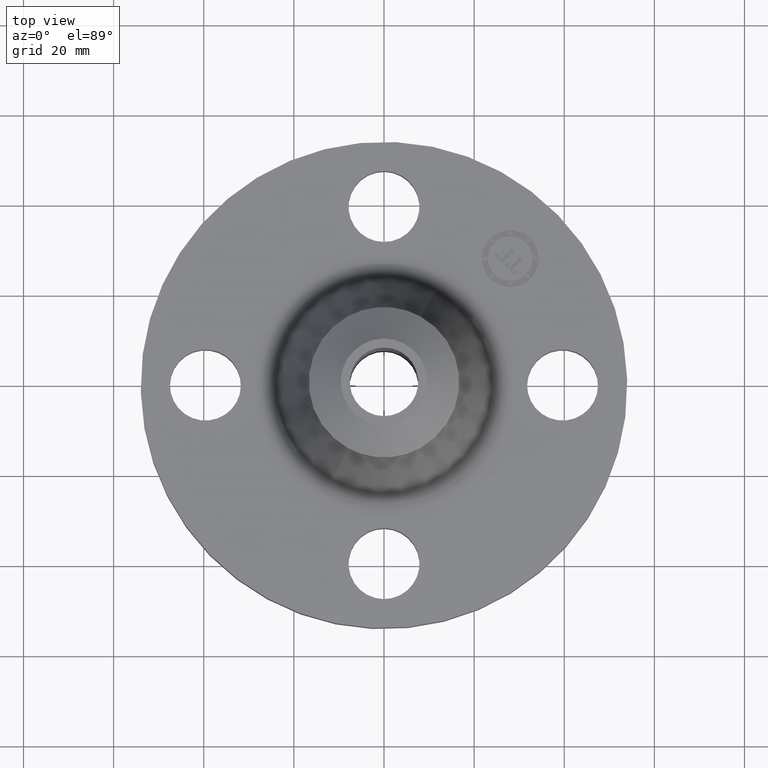
[diagram: clean part render]
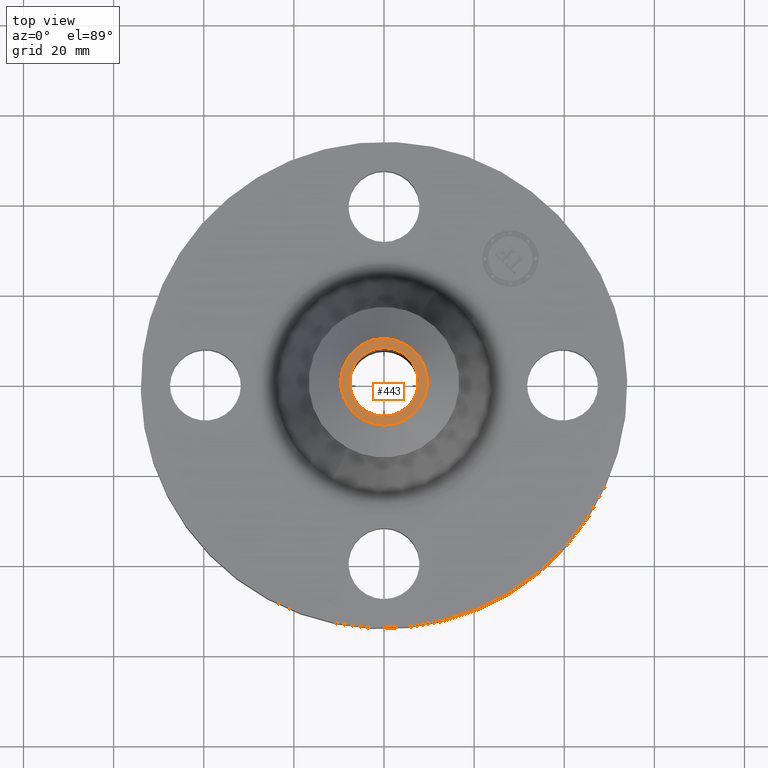
[diagram: same view with one face highlighted and labeled with its STEP entity id]
A machine part, top view. The second image highlights one B-rep face of the part: STEP entity #443.
In plain terms, the highlighted planar face has unit normal (0, 0, -1).
Its self-contained STEP definition (entity closure, byte-faithful):
#322=AXIS2_PLACEMENT_3D('Circle Axis2P3D',#320,#321,$) ;
#347=AXIS2_PLACEMENT_3D('Circle Axis2P3D',#345,#346,$) ;
#382=AXIS2_PLACEMENT_3D('Circle Axis2P3D',#380,#381,$) ;
#428=AXIS2_PLACEMENT_3D('Plane Axis2P3D',#425,#426,#427) ;
#432=AXIS2_PLACEMENT_3D('Circle Axis2P3D',#430,#431,$) ;
#317=CARTESIAN_POINT('Vertex',(0.181337991222,-0.331936966412,2.12000000001)) ;
#320=CARTESIAN_POINT('Axis2P3D Location',(0.,0.,2.12000000001)) ;
#324=CARTESIAN_POINT('Vertex',(-0.181337991222,0.331936966412,2.12000000001)) ;
#345=CARTESIAN_POINT('Axis2P3D Location',(0.,0.,2.12000000001)) ;
#349=CARTESIAN_POINT('Vertex',(0.143587948813,0.262835977287,2.12000000001)) ;
#351=CARTESIAN_POINT('Vertex',(-0.143587948813,-0.262835977287,2.12000000001)) ;
#380=CARTESIAN_POINT('Axis2P3D Location',(0.,0.,2.12000000001)) ;
#425=CARTESIAN_POINT('Axis2P3D Location',(0.,0.657500000003,2.12000000001)) ;
#430=CARTESIAN_POINT('Axis2P3D Location',(0.,0.,2.12000000001)) ;
#321=DIRECTION('Axis2P3D Direction',(0.,0.,-0.0393700787402)) ;
#346=DIRECTION('Axis2P3D Direction',(0.,0.,-0.0393700787402)) ;
#381=DIRECTION('Axis2P3D Direction',(0.,0.,-0.0393700787402)) ;
#426=DIRECTION('Axis2P3D Direction',(0.,0.,-0.0393700787402)) ;
#427=DIRECTION('Axis2P3D XDirection',(0.0393700787402,0.,0.)) ;
#431=DIRECTION('Axis2P3D Direction',(0.,0.,-0.0393700787402)) ;
#436=ORIENTED_EDGE('',*,*,#434,.T.) ;
#437=ORIENTED_EDGE('',*,*,#326,.T.) ;
#440=ORIENTED_EDGE('',*,*,#384,.T.) ;
#441=ORIENTED_EDGE('',*,*,#353,.T.) ;
#442=FACE_BOUND('',#439,.T.) ;
#443=ADVANCED_FACE('PartBody',(#438,#442),#429,.F.) ;
#323=CIRCLE('generated circle',#322,0.378240157481) ;
#348=CIRCLE('generated circle',#347,0.299500000001) ;
#383=CIRCLE('generated circle',#382,0.299500000001) ;
#433=CIRCLE('generated circle',#432,0.378240157482) ;
#326=EDGE_CURVE('',#325,#318,#323,.F.) ;
#353=EDGE_CURVE('',#350,#352,#348,.T.) ;
#384=EDGE_CURVE('',#352,#350,#383,.T.) ;
#434=EDGE_CURVE('',#318,#325,#433,.F.) ;
#435=EDGE_LOOP('',(#436,#437)) ;
#439=EDGE_LOOP('',(#440,#441)) ;
#438=FACE_OUTER_BOUND('',#435,.T.) ;
#429=PLANE('',#428) ;
#318=VERTEX_POINT('',#317) ;
#325=VERTEX_POINT('',#324) ;
#350=VERTEX_POINT('',#349) ;
#352=VERTEX_POINT('',#351) ;